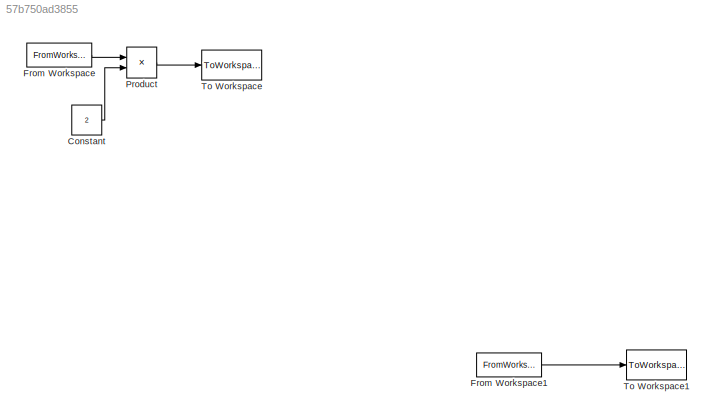
MODEL slx_57b750ad3855
KIND model
CONFIG InitFcn = simin = [0 1;0.25 2;0.5 3;0.75 4];
BLOCK [Constant] Constant
  Commented = on
  Value = 2
BLOCK [FromWorkspace] From Workspace
  Commented = on
  Interpolate = off
  OutputAfterFinalValue = Holding final value
  SampleTime = 0.25
  VariableName = simin
  ZeroCross = on
BLOCK [FromWorkspace] From Workspace1
  Interpolate = off
  OutputAfterFinalValue = Holding final value
  SampleTime = 0.25
  VariableName = dataIn
  ZeroCross = on
BLOCK [Product] Product
  Commented = on
  InputSameDT = off
  OutDataTypeStr = Inherit: Inherit via internal rule
  Ports = [2, 1]
  RndMeth = Floor
  SaturateOnIntegerOverflow = off
BLOCK [ToWorkspace] To Workspace
  Commented = on
  FixptAsFi = on
  MaxDataPoints = inf
  Ports = [1]
  SampleTime = -1
  Save2DSignal = 2-D array (concatenate along first dimension)
  VariableName = simout
BLOCK [ToWorkspace] To Workspace1
  FixptAsFi = on
  MaxDataPoints = inf
  Ports = [1]
  SampleTime = -1
  Save2DSignal = 2-D array (concatenate along first dimension)
  VariableName = simout
LINE Constant:1 -> Product:2
LINE From Workspace1:1 -> To Workspace1:1
LINE From Workspace:1 -> Product:1
LINE Product:1 -> To Workspace:1
